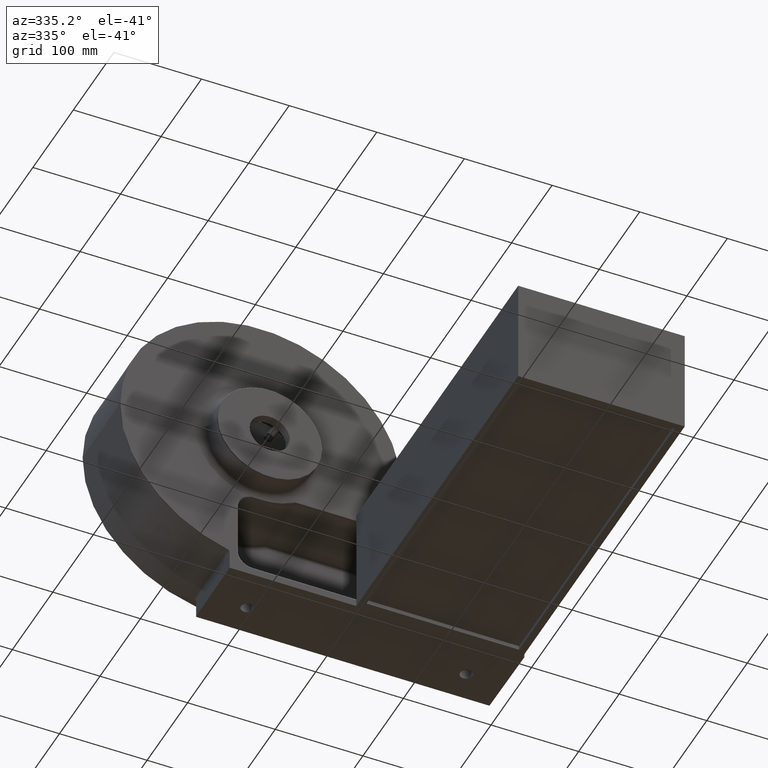
[diagram: clean part render]
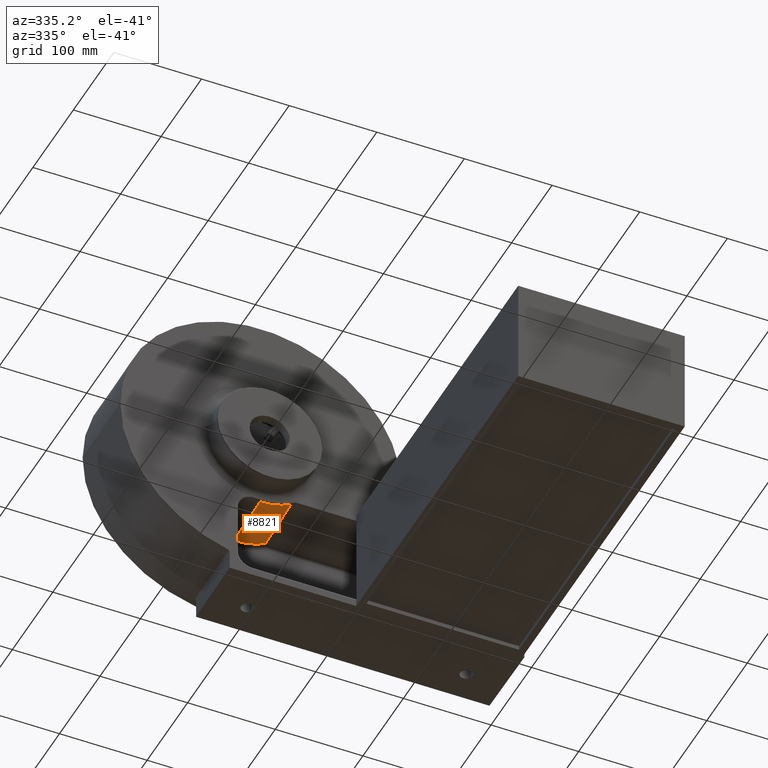
[diagram: same view with one face highlighted and labeled with its STEP entity id]
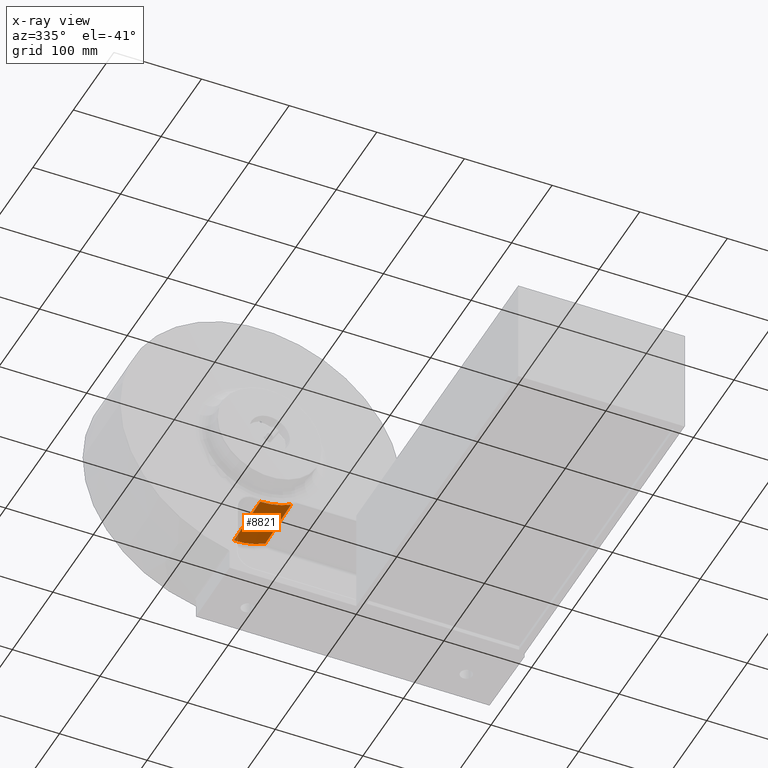
[diagram: x-ray of the same camera — body ghosted, the highlighted face saturated]
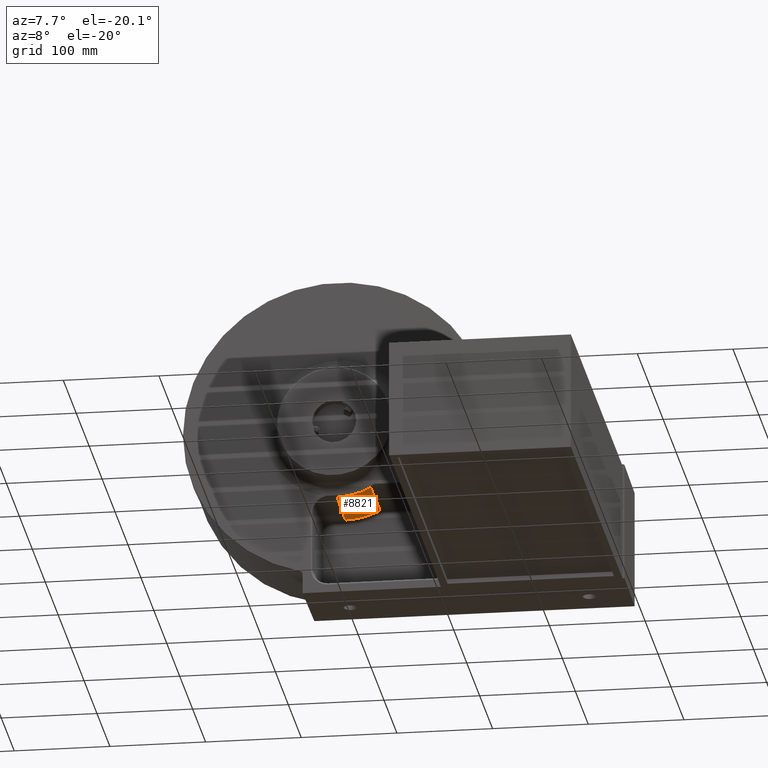
[diagram: same view with one face highlighted and labeled with its STEP entity id]
A machine part, auxiliary view. The second image highlights one B-rep face of the part: STEP entity #8821.
The next image is the same camera in x-ray: the body ghosted, the highlighted face saturated — about 1% of this face is hidden behind the body in this view.
A second angle (auxiliary view) of the same face is appended — the face is thin or edge-on in the first view.
In plain terms, the highlighted conical surface has half-angle 1.5 deg.
Its self-contained STEP definition (entity closure, byte-faithful):
#8 = DIRECTION ( 'NONE',  ( -1.000000000000000000, 0.0000000000000000000, 0.0000000000000000000 ) ) ;
#287 = DIRECTION ( 'NONE',  ( -1.242786967863980845E-16, 1.000000000000000000, 0.0000000000000000000 ) ) ;
#356 = FACE_OUTER_BOUND ( 'NONE', #5816, .T. ) ;
#381 = DIRECTION ( 'NONE',  ( 1.000000000000000000, 0.0000000000000000000, 0.0000000000000000000 ) ) ;
#410 = DIRECTION ( 'NONE',  ( -1.242786967863980845E-16, 1.000000000000000000, 0.0000000000000000000 ) ) ;
#415 = CARTESIAN_POINT ( 'NONE',  ( -108.7417837622144674, 399.9999000000000251, 55.99999999999999289 ) ) ;
#1149 = ORIENTED_EDGE ( 'NONE', *, *, #10659, .T. ) ;
#1224 = VERTEX_POINT ( 'NONE', #9836 ) ;
#1539 = VERTEX_POINT ( 'NONE', #5474 ) ;
#2783 = DIRECTION ( 'NONE',  ( -1.000000000000000000, 0.0000000000000000000, 9.039975485033012492E-16 ) ) ;
#2799 = DIRECTION ( 'NONE',  ( 1.242786967863980845E-16, -1.000000000000000000, -0.0000000000000000000 ) ) ;
#2823 = CARTESIAN_POINT ( 'NONE',  ( -108.7417837622144674, 467.1307847415394008, 55.99999999999999289 ) ) ;
#2963 = AXIS2_PLACEMENT_3D ( 'NONE', #2823, #2799, #2783 ) ;
#3110 = CONICAL_SURFACE ( 'NONE', #9499, 75.00000000000001421, 0.02617993877991500046 ) ;
#3954 = EDGE_CURVE ( 'NONE', #11277, #10948, #5106, .T. ) ;
#4013 = DIRECTION ( 'NONE',  ( -0.01230626029939987237, -0.9996573249755572599, 0.02310386504800608642 ) ) ;
#4025 = CARTESIAN_POINT ( 'NONE',  ( -73.48291738865026446, 399.9999000000000251, -10.19525921129960011 ) ) ;
#4872 = AXIS2_PLACEMENT_3D ( 'NONE', #7581, #287, #8 ) ;
#5106 = LINE ( 'NONE', #4025, #8685 ) ;
#5474 = CARTESIAN_POINT ( 'NONE',  ( -108.7417837622144390, 401.8351924967412288, -19.04805882537620576 ) ) ;
#5816 = EDGE_LOOP ( 'NONE', ( #7198, #10939, #6600, #1149 ) ) ;
#5993 = EDGE_CURVE ( 'NONE', #10948, #1539, #9936, .T. ) ;
#6600 = ORIENTED_EDGE ( 'NONE', *, *, #7855, .F. ) ;
#7088 = CARTESIAN_POINT ( 'NONE',  ( -72.65650405568277392, 467.1307847415394008, -11.74677377821352309 ) ) ;
#7198 = ORIENTED_EDGE ( 'NONE', *, *, #3954, .T. ) ;
#7581 = CARTESIAN_POINT ( 'NONE',  ( -108.7417837622144674, 401.8351924967412288, 55.99999999999999289 ) ) ;
#7746 = VECTOR ( 'NONE', #10764, 1000.000000000000114 ) ;
#7797 = CIRCLE ( 'NONE', #2963, 76.75788408271208141 ) ;
#7855 = EDGE_CURVE ( 'NONE', #1224, #1539, #9510, .T. ) ;
#8685 = VECTOR ( 'NONE', #4013, 1000.000000000000114 ) ;
#8821 = ADVANCED_FACE ( 'NONE', ( #356 ), #3110, .T. ) ;
#9499 = AXIS2_PLACEMENT_3D ( 'NONE', #415, #410, #381 ) ;
#9510 = LINE ( 'NONE', #10649, #7746 ) ;
#9836 = CARTESIAN_POINT ( 'NONE',  ( -108.7417837622144674, 467.1307847415394008, -20.75788408271209207 ) ) ;
#9936 = CIRCLE ( 'NONE', #4872, 75.04805882537621642 ) ;
#10649 = CARTESIAN_POINT ( 'NONE',  ( -108.7417837622144390, 399.9999000000000251, -19.00000000000001776 ) ) ;
#10659 = EDGE_CURVE ( 'NONE', #1224, #11277, #7797, .T. ) ;
#10692 = CARTESIAN_POINT ( 'NONE',  ( -73.46032405929011588, 401.8351924967412288, -10.23767609667515543 ) ) ;
#10764 = DIRECTION ( 'NONE',  ( 1.226332337831049841E-16, -0.9996573249755572599, 0.02617694830787321153 ) ) ;
#10939 = ORIENTED_EDGE ( 'NONE', *, *, #5993, .T. ) ;
#10948 = VERTEX_POINT ( 'NONE', #10692 ) ;
#11277 = VERTEX_POINT ( 'NONE', #7088 ) ;